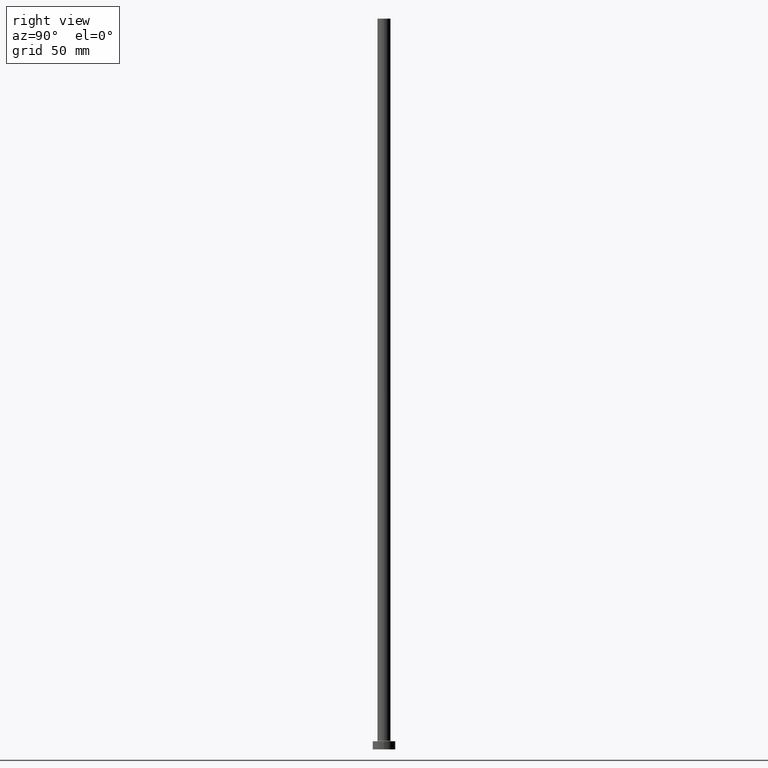
[diagram: clean part render]
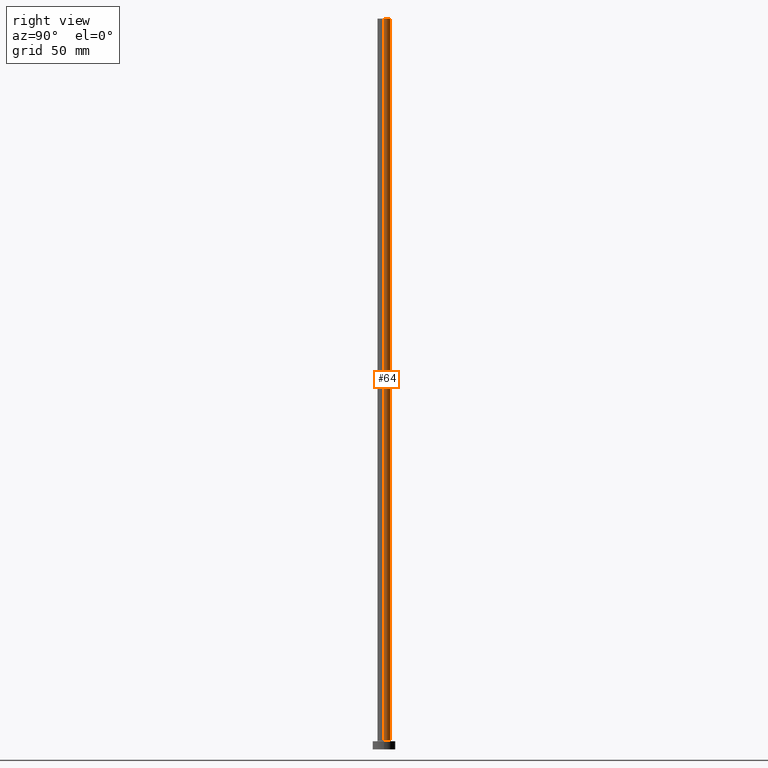
[diagram: same view with one face highlighted and labeled with its STEP entity id]
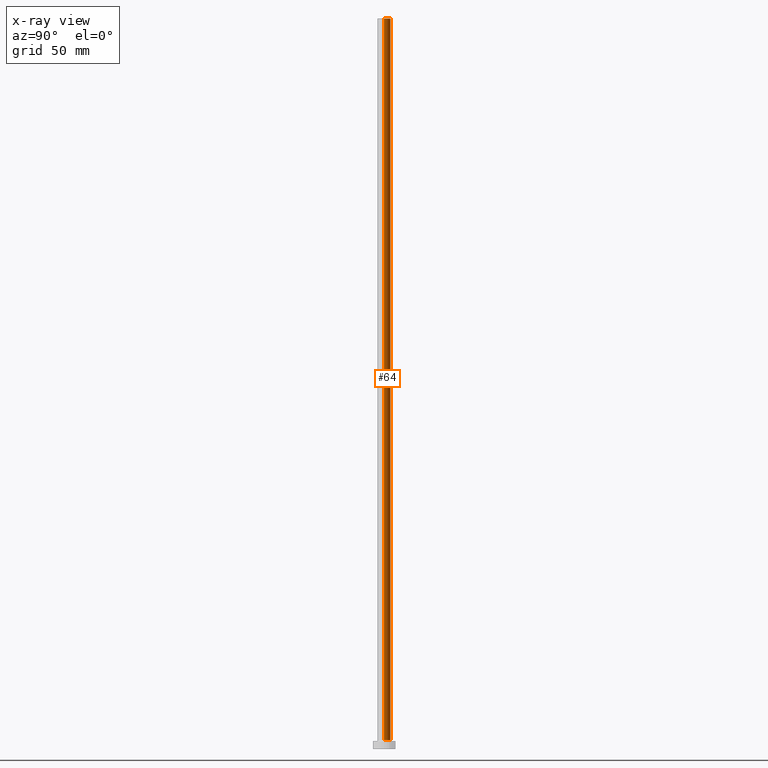
[diagram: x-ray of the same camera — body ghosted, the highlighted face saturated]
A machine part, right view. The second image highlights one B-rep face of the part: STEP entity #64.
The next image is the same camera in x-ray: the body ghosted, the highlighted face saturated — about 0% of this face is hidden behind the body in this view.
In plain terms, the highlighted cylindrical surface (edge-blend (fillet) strip) has radius 4 mm, axis along (-0, -0, -1).
Its self-contained STEP definition (entity closure, byte-faithful):
#4 = EDGE_LOOP ( 'NONE', ( #19, #74, #129, #197 ) ) ;
#15 = VECTOR ( 'NONE', #349, 1000.000000000000000 ) ;
#19 = ORIENTED_EDGE ( 'NONE', *, *, #44, .F. ) ;
#24 = CIRCLE ( 'NONE', #169, 4.000000000000000000 ) ;
#33 = AXIS2_PLACEMENT_3D ( 'NONE', #244, #381, #143 ) ;
#44 = EDGE_CURVE ( 'NONE', #200, #442, #24, .T. ) ;
#64 = ADVANCED_FACE ( 'NONE', ( #447 ), #415, .T. ) ;
#67 = EDGE_CURVE ( 'NONE', #442, #440, #180, .T. ) ;
#70 = CARTESIAN_POINT ( 'NONE',  ( -4.000000000000000000, 0.000000000000000000, 450.0000000000000000 ) ) ;
#74 = ORIENTED_EDGE ( 'NONE', *, *, #198, .T. ) ;
#76 = CARTESIAN_POINT ( 'NONE',  ( 0.000000000000000000, 0.000000000000000000, 5.500000000000005329 ) ) ;
#107 = CARTESIAN_POINT ( 'NONE',  ( 4.000000000000000000, 4.898587196589412829E-16, 450.0000000000000000 ) ) ;
#121 = DIRECTION ( 'NONE',  ( 1.000000000000000000, 0.000000000000000000, 0.000000000000000000 ) ) ;
#129 = ORIENTED_EDGE ( 'NONE', *, *, #257, .T. ) ;
#143 = DIRECTION ( 'NONE',  ( -1.000000000000000000, 0.000000000000000000, 0.000000000000000000 ) ) ;
#169 = AXIS2_PLACEMENT_3D ( 'NONE', #278, #410, #202 ) ;
#171 = CARTESIAN_POINT ( 'NONE',  ( -4.000000000000000000, 0.000000000000000000, 450.0000000000000000 ) ) ;
#180 = LINE ( 'NONE', #70, #438 ) ;
#197 = ORIENTED_EDGE ( 'NONE', *, *, #67, .F. ) ;
#198 = EDGE_CURVE ( 'NONE', #200, #234, #424, .T. ) ;
#200 = VERTEX_POINT ( 'NONE', #254 ) ;
#202 = DIRECTION ( 'NONE',  ( 1.000000000000000000, 0.000000000000000000, 0.000000000000000000 ) ) ;
#234 = VERTEX_POINT ( 'NONE', #419 ) ;
#244 = CARTESIAN_POINT ( 'NONE',  ( 0.000000000000000000, 0.000000000000000000, 450.0000000000000000 ) ) ;
#254 = CARTESIAN_POINT ( 'NONE',  ( 4.000000000000000000, 4.898587196589412829E-16, 450.0000000000000000 ) ) ;
#257 = EDGE_CURVE ( 'NONE', #234, #440, #301, .T. ) ;
#271 = DIRECTION ( 'NONE',  ( 0.000000000000000000, 0.000000000000000000, 1.000000000000000000 ) ) ;
#278 = CARTESIAN_POINT ( 'NONE',  ( 0.000000000000000000, 0.000000000000000000, 450.0000000000000000 ) ) ;
#301 = CIRCLE ( 'NONE', #360, 4.000000000000000000 ) ;
#349 = DIRECTION ( 'NONE',  ( -0.000000000000000000, -0.000000000000000000, -1.000000000000000000 ) ) ;
#360 = AXIS2_PLACEMENT_3D ( 'NONE', #76, #271, #121 ) ;
#376 = CARTESIAN_POINT ( 'NONE',  ( -4.000000000000000000, 0.000000000000000000, 5.500000000000005329 ) ) ;
#381 = DIRECTION ( 'NONE',  ( -0.000000000000000000, -0.000000000000000000, -1.000000000000000000 ) ) ;
#390 = DIRECTION ( 'NONE',  ( -0.000000000000000000, -0.000000000000000000, -1.000000000000000000 ) ) ;
#410 = DIRECTION ( 'NONE',  ( 0.000000000000000000, 0.000000000000000000, 1.000000000000000000 ) ) ;
#415 = CYLINDRICAL_SURFACE ( 'NONE', #33, 4.000000000000000000 ) ;
#419 = CARTESIAN_POINT ( 'NONE',  ( 4.000000000000000000, 4.898587196589412829E-16, 5.500000000000005329 ) ) ;
#424 = LINE ( 'NONE', #107, #15 ) ;
#438 = VECTOR ( 'NONE', #390, 1000.000000000000000 ) ;
#440 = VERTEX_POINT ( 'NONE', #376 ) ;
#442 = VERTEX_POINT ( 'NONE', #171 ) ;
#447 = FACE_OUTER_BOUND ( 'NONE', #4, .T. ) ;